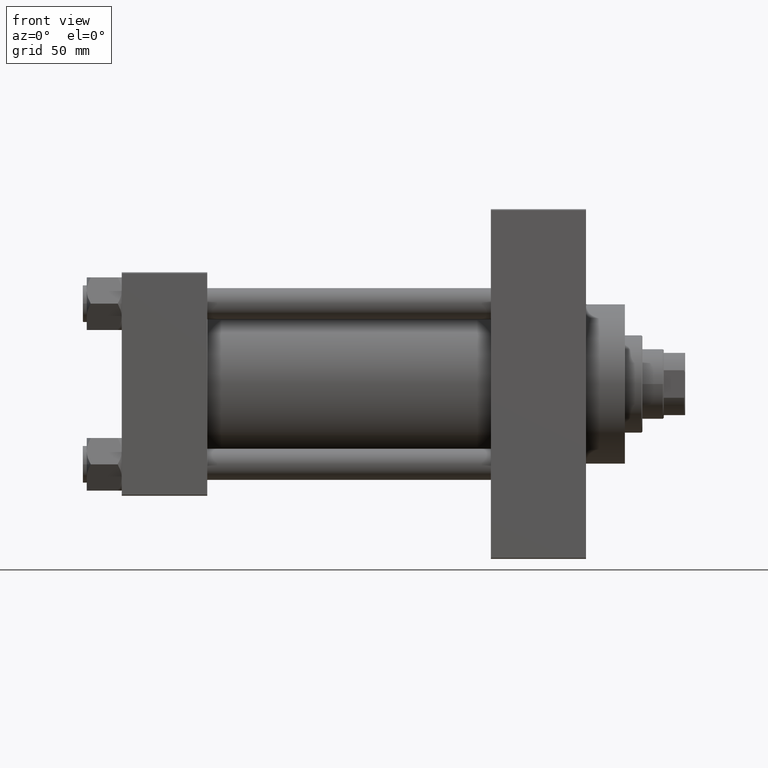
[diagram: clean part render]
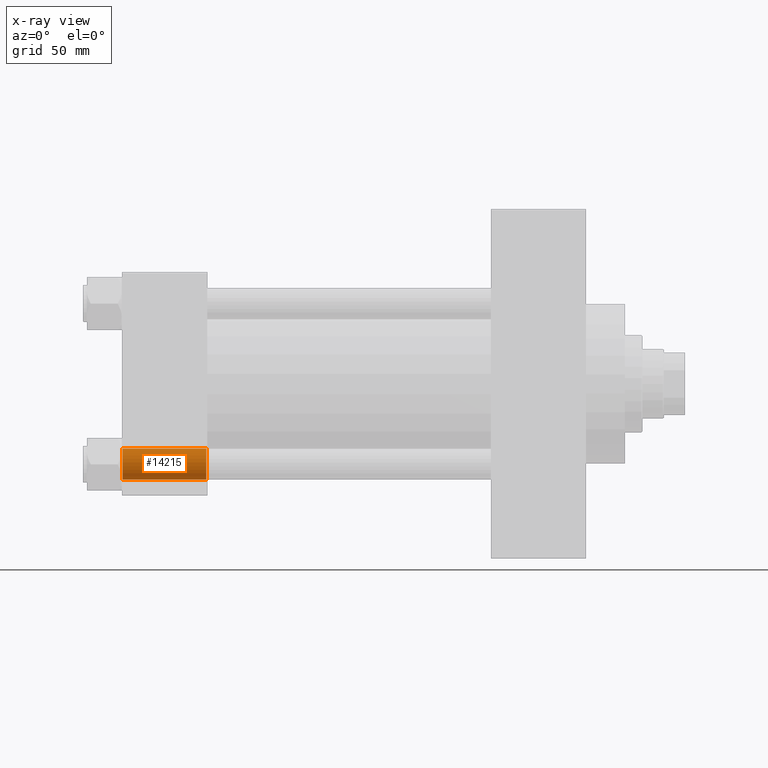
[diagram: x-ray — body ghosted, one internal face saturated and labeled with its STEP entity id]
A machine part, front view, then the same camera in x-ray: the body is ghosted and one INTERNAL B-rep face — a face not visible from any outside direction — is saturated and labeled: STEP entity #14215.
In plain terms, the highlighted cylindrical surface (edge-blend (fillet) strip) has radius 8 mm, axis along (-1, -0, -0).
Its self-contained STEP definition (entity closure, byte-faithful):
#2045 = CARTESIAN_POINT ( 'NONE',  ( 43.49999999999999289, 41.34999999999999432, -41.35000000000000142 ) ) ;
#2050 = EDGE_LOOP ( 'NONE', ( #29781, #11614, #17520, #44872 ) ) ;
#2482 = EDGE_CURVE ( 'NONE', #28341, #2918, #45740, .T. ) ;
#2525 = DIRECTION ( 'NONE',  ( 0.000000000000000000, 0.000000000000000000, 1.000000000000000000 ) ) ;
#2539 = CARTESIAN_POINT ( 'NONE',  ( 44.00000000000001421, 41.34999999999999432, -49.35000000000000853 ) ) ;
#2918 = VERTEX_POINT ( 'NONE', #11508 ) ;
#5149 = VECTOR ( 'NONE', #31192, 1000.000000000000000 ) ;
#9807 = LINE ( 'NONE', #2539, #22628 ) ;
#11287 = VERTEX_POINT ( 'NONE', #41557 ) ;
#11508 = CARTESIAN_POINT ( 'NONE',  ( 0.4999999999999935052, 41.34999999999999432, -33.35000000000000142 ) ) ;
#11614 = ORIENTED_EDGE ( 'NONE', *, *, #21169, .T. ) ;
#14058 = EDGE_CURVE ( 'NONE', #11287, #2918, #38022, .T. ) ;
#14215 = ADVANCED_FACE ( 'NONE', ( #35265 ), #16876, .F. ) ;
#14546 = EDGE_CURVE ( 'NONE', #28341, #45938, #44132, .T. ) ;
#16876 = CYLINDRICAL_SURFACE ( 'NONE', #44220, 8.000000000000000000 ) ;
#17520 = ORIENTED_EDGE ( 'NONE', *, *, #14058, .T. ) ;
#20678 = DIRECTION ( 'NONE',  ( 1.000000000000000000, -0.000000000000000000, -0.000000000000000000 ) ) ;
#21169 = EDGE_CURVE ( 'NONE', #45938, #11287, #9807, .T. ) ;
#21803 = AXIS2_PLACEMENT_3D ( 'NONE', #2045, #20678, #2525 ) ;
#22628 = VECTOR ( 'NONE', #32062, 1000.000000000000000 ) ;
#25644 = AXIS2_PLACEMENT_3D ( 'NONE', #41579, #46170, #43019 ) ;
#27806 = CARTESIAN_POINT ( 'NONE',  ( 44.00000000000001421, 41.34999999999999432, -33.35000000000000142 ) ) ;
#28341 = VERTEX_POINT ( 'NONE', #30004 ) ;
#28719 = CARTESIAN_POINT ( 'NONE',  ( 44.00000000000001421, 41.34999999999999432, -41.35000000000000142 ) ) ;
#29440 = DIRECTION ( 'NONE',  ( 0.000000000000000000, 0.000000000000000000, 1.000000000000000000 ) ) ;
#29781 = ORIENTED_EDGE ( 'NONE', *, *, #14546, .T. ) ;
#30004 = CARTESIAN_POINT ( 'NONE',  ( 43.49999999999999289, 41.34999999999999432, -33.35000000000000142 ) ) ;
#31192 = DIRECTION ( 'NONE',  ( -1.000000000000000000, -0.000000000000000000, -0.000000000000000000 ) ) ;
#32062 = DIRECTION ( 'NONE',  ( -1.000000000000000000, -0.000000000000000000, -0.000000000000000000 ) ) ;
#35265 = FACE_OUTER_BOUND ( 'NONE', #2050, .T. ) ;
#36691 = DIRECTION ( 'NONE',  ( -1.000000000000000000, -0.000000000000000000, -0.000000000000000000 ) ) ;
#38022 = CIRCLE ( 'NONE', #25644, 8.000000000000000000 ) ;
#39655 = CARTESIAN_POINT ( 'NONE',  ( 43.49999999999999289, 41.34999999999999432, -49.35000000000000853 ) ) ;
#41557 = CARTESIAN_POINT ( 'NONE',  ( 0.4999999999999935052, 41.34999999999999432, -49.35000000000000853 ) ) ;
#41579 = CARTESIAN_POINT ( 'NONE',  ( 0.4999999999999935052, 41.34999999999999432, -41.35000000000000142 ) ) ;
#43019 = DIRECTION ( 'NONE',  ( 0.000000000000000000, 0.000000000000000000, 1.000000000000000000 ) ) ;
#44132 = CIRCLE ( 'NONE', #21803, 8.000000000000000000 ) ;
#44220 = AXIS2_PLACEMENT_3D ( 'NONE', #28719, #36691, #29440 ) ;
#44872 = ORIENTED_EDGE ( 'NONE', *, *, #2482, .F. ) ;
#45740 = LINE ( 'NONE', #27806, #5149 ) ;
#45938 = VERTEX_POINT ( 'NONE', #39655 ) ;
#46170 = DIRECTION ( 'NONE',  ( -1.000000000000000000, 0.000000000000000000, 0.000000000000000000 ) ) ;